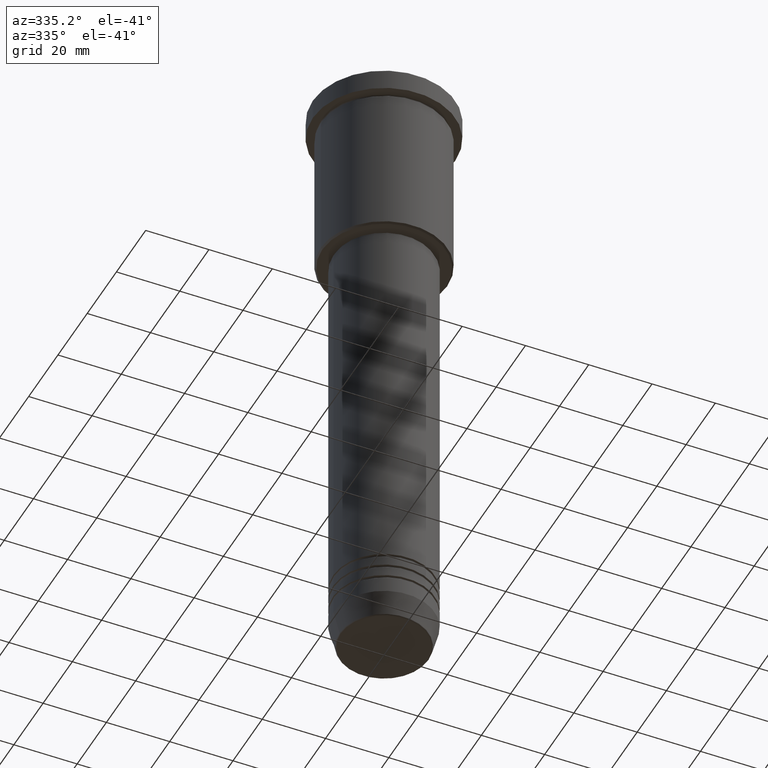
[diagram: clean part render]
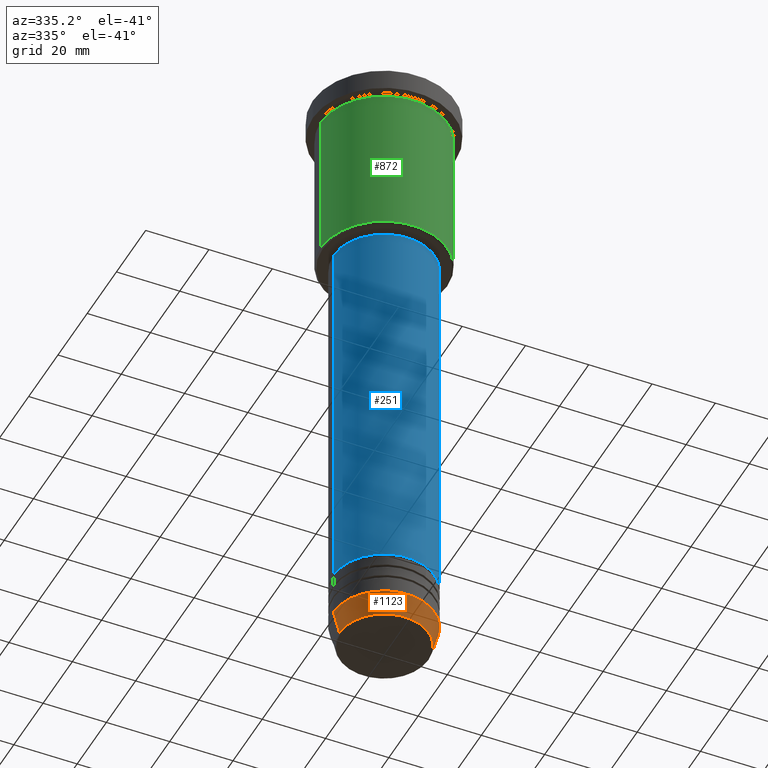
[diagram: same view with three faces highlighted in distinct colors, each labeled with its STEP entity id]
A machine part, auxiliary view with three faces highlighted in distinct colors.
Their STEP definitions:

[orange] entity #1123 — the highlighted conical surface has half-angle 15 deg.
#10 = EDGE_CURVE ( 'NONE', #926, #658, #240, .T. ) ;
#25 = CARTESIAN_POINT ( 'NONE',  ( 0.000000000000000000, 0.000000000000000000, -199.6294095225512706 ) ) ;
#152 = VERTEX_POINT ( 'NONE', #330 ) ;
#175 = DIRECTION ( 'NONE',  ( -0.2588190451025213501, 3.169619151431772337E-17, 0.9659258262890680902 ) ) ;
#190 = ORIENTED_EDGE ( 'NONE', *, *, #1042, .F. ) ;
#231 = CONICAL_SURFACE ( 'NONE', #573, 16.00000000000000000, 0.2617993877991500740 ) ;
#240 = LINE ( 'NONE', #252, #886 ) ;
#252 = CARTESIAN_POINT ( 'NONE',  ( 16.00000000000000000, 0.000000000000000000, -192.5000000000000284 ) ) ;
#285 = DIRECTION ( 'NONE',  ( 1.000000000000000000, 0.000000000000000000, 0.000000000000000000 ) ) ;
#310 = VERTEX_POINT ( 'NONE', #471 ) ;
#328 = CARTESIAN_POINT ( 'NONE',  ( 0.000000000000000000, 0.000000000000000000, -192.5000000000000284 ) ) ;
#330 = CARTESIAN_POINT ( 'NONE',  ( -14.08968047592163941, 1.842461544110202058E-15, -199.6294095225512706 ) ) ;
#370 = CARTESIAN_POINT ( 'NONE',  ( -16.00000000000000000, 1.959434878635765131E-15, -192.5000000000000284 ) ) ;
#384 = DIRECTION ( 'NONE',  ( -0.000000000000000000, -0.000000000000000000, 1.000000000000000000 ) ) ;
#410 = ORIENTED_EDGE ( 'NONE', *, *, #10, .T. ) ;
#425 = DIRECTION ( 'NONE',  ( 0.2588190451025213501, 0.000000000000000000, 0.9659258262890680902 ) ) ;
#441 = CARTESIAN_POINT ( 'NONE',  ( 14.08968047592163941, 0.000000000000000000, -199.6294095225512706 ) ) ;
#451 = CARTESIAN_POINT ( 'NONE',  ( 0.000000000000000000, 0.000000000000000000, -192.5000000000000284 ) ) ;
#455 = CIRCLE ( 'NONE', #784, 14.08968047592163941 ) ;
#471 = CARTESIAN_POINT ( 'NONE',  ( -16.00000000000000000, 1.959434878635765131E-15, -192.5000000000000284 ) ) ;
#503 = DIRECTION ( 'NONE',  ( -0.000000000000000000, -0.000000000000000000, 1.000000000000000000 ) ) ;
#520 = EDGE_LOOP ( 'NONE', ( #190, #1170, #410, #918 ) ) ;
#551 = AXIS2_PLACEMENT_3D ( 'NONE', #328, #503, #804 ) ;
#573 = AXIS2_PLACEMENT_3D ( 'NONE', #451, #1100, #832 ) ;
#656 = EDGE_CURVE ( 'NONE', #152, #926, #455, .T. ) ;
#658 = VERTEX_POINT ( 'NONE', #1106 ) ;
#690 = CIRCLE ( 'NONE', #551, 16.00000000000000000 ) ;
#784 = AXIS2_PLACEMENT_3D ( 'NONE', #25, #384, #285 ) ;
#804 = DIRECTION ( 'NONE',  ( 1.000000000000000000, 0.000000000000000000, 0.000000000000000000 ) ) ;
#832 = DIRECTION ( 'NONE',  ( 1.000000000000000000, 0.000000000000000000, 0.000000000000000000 ) ) ;
#886 = VECTOR ( 'NONE', #425, 1000.000000000000000 ) ;
#914 = FACE_OUTER_BOUND ( 'NONE', #520, .T. ) ;
#918 = ORIENTED_EDGE ( 'NONE', *, *, #930, .F. ) ;
#926 = VERTEX_POINT ( 'NONE', #441 ) ;
#930 = EDGE_CURVE ( 'NONE', #310, #658, #690, .T. ) ;
#1042 = EDGE_CURVE ( 'NONE', #152, #310, #1109, .T. ) ;
#1100 = DIRECTION ( 'NONE',  ( -0.000000000000000000, -0.000000000000000000, 1.000000000000000000 ) ) ;
#1106 = CARTESIAN_POINT ( 'NONE',  ( 16.00000000000000000, 0.000000000000000000, -192.5000000000000284 ) ) ;
#1109 = LINE ( 'NONE', #370, #1169 ) ;
#1123 = ADVANCED_FACE ( 'NONE', ( #914 ), #231, .T. ) ;
#1169 = VECTOR ( 'NONE', #175, 1000.000000000000000 ) ;
#1170 = ORIENTED_EDGE ( 'NONE', *, *, #656, .T. ) ;

[blue] entity #251 — the highlighted cylindrical surface (partial cylindrical patch) has radius 16 mm, axis along (-0, -0, 1).
#7 = AXIS2_PLACEMENT_3D ( 'NONE', #912, #1157, #623 ) ;
#53 = CARTESIAN_POINT ( 'NONE',  ( 16.00000000000000000, 0.000000000000000000, -178.5000000000000284 ) ) ;
#64 = DIRECTION ( 'NONE',  ( -0.000000000000000000, -0.000000000000000000, 1.000000000000000000 ) ) ;
#93 = ORIENTED_EDGE ( 'NONE', *, *, #910, .F. ) ;
#102 = DIRECTION ( 'NONE',  ( -0.000000000000000000, -0.000000000000000000, 1.000000000000000000 ) ) ;
#104 = CARTESIAN_POINT ( 'NONE',  ( 0.000000000000000000, 0.000000000000000000, 0.000000000000000000 ) ) ;
#105 = EDGE_CURVE ( 'NONE', #126, #364, #612, .T. ) ;
#126 = VERTEX_POINT ( 'NONE', #790 ) ;
#145 = LINE ( 'NONE', #989, #824 ) ;
#187 = DIRECTION ( 'NONE',  ( -0.000000000000000000, -0.000000000000000000, 1.000000000000000000 ) ) ;
#191 = CARTESIAN_POINT ( 'NONE',  ( 0.000000000000000000, 0.000000000000000000, -57.00000000000001421 ) ) ;
#220 = ORIENTED_EDGE ( 'NONE', *, *, #1172, .F. ) ;
#247 = CIRCLE ( 'NONE', #729, 16.00000000000000000 ) ;
#251 = ADVANCED_FACE ( 'NONE', ( #734 ), #740, .T. ) ;
#253 = ORIENTED_EDGE ( 'NONE', *, *, #105, .T. ) ;
#294 = EDGE_LOOP ( 'NONE', ( #93, #253, #600, #220 ) ) ;
#311 = EDGE_CURVE ( 'NONE', #364, #848, #917, .T. ) ;
#364 = VERTEX_POINT ( 'NONE', #53 ) ;
#464 = DIRECTION ( 'NONE',  ( 1.000000000000000000, 0.000000000000000000, 0.000000000000000000 ) ) ;
#600 = ORIENTED_EDGE ( 'NONE', *, *, #311, .T. ) ;
#612 = CIRCLE ( 'NONE', #7, 16.00000000000000000 ) ;
#623 = DIRECTION ( 'NONE',  ( 1.000000000000000000, 0.000000000000000000, 0.000000000000000000 ) ) ;
#642 = DIRECTION ( 'NONE',  ( -0.000000000000000000, -0.000000000000000000, 1.000000000000000000 ) ) ;
#655 = DIRECTION ( 'NONE',  ( 1.000000000000000000, 0.000000000000000000, 0.000000000000000000 ) ) ;
#678 = CARTESIAN_POINT ( 'NONE',  ( 16.00000000000000000, 0.000000000000000000, -57.00000000000001421 ) ) ;
#729 = AXIS2_PLACEMENT_3D ( 'NONE', #191, #102, #464 ) ;
#734 = FACE_OUTER_BOUND ( 'NONE', #294, .T. ) ;
#740 = CYLINDRICAL_SURFACE ( 'NONE', #1072, 16.00000000000000000 ) ;
#790 = CARTESIAN_POINT ( 'NONE',  ( -16.00000000000000000, 1.959434878635765131E-15, -178.5000000000000284 ) ) ;
#824 = VECTOR ( 'NONE', #64, 1000.000000000000000 ) ;
#848 = VERTEX_POINT ( 'NONE', #678 ) ;
#909 = CARTESIAN_POINT ( 'NONE',  ( -16.00000000000000000, 1.959434878635765131E-15, -57.00000000000001421 ) ) ;
#910 = EDGE_CURVE ( 'NONE', #126, #1103, #145, .T. ) ;
#912 = CARTESIAN_POINT ( 'NONE',  ( 0.000000000000000000, 0.000000000000000000, -178.5000000000000284 ) ) ;
#917 = LINE ( 'NONE', #1012, #1036 ) ;
#989 = CARTESIAN_POINT ( 'NONE',  ( -16.00000000000000000, 1.959434878635765131E-15, 0.000000000000000000 ) ) ;
#1012 = CARTESIAN_POINT ( 'NONE',  ( 16.00000000000000000, 0.000000000000000000, 0.000000000000000000 ) ) ;
#1036 = VECTOR ( 'NONE', #187, 1000.000000000000000 ) ;
#1072 = AXIS2_PLACEMENT_3D ( 'NONE', #104, #642, #655 ) ;
#1103 = VERTEX_POINT ( 'NONE', #909 ) ;
#1157 = DIRECTION ( 'NONE',  ( -0.000000000000000000, -0.000000000000000000, 1.000000000000000000 ) ) ;
#1172 = EDGE_CURVE ( 'NONE', #1103, #848, #247, .T. ) ;

[green] entity #872 — the highlighted cylindrical surface (partial cylindrical patch) has radius 20 mm, axis along (-0, -0, 1).
#42 = AXIS2_PLACEMENT_3D ( 'NONE', #164, #529, #978 ) ;
#97 = DIRECTION ( 'NONE',  ( -0.000000000000000000, -0.000000000000000000, 1.000000000000000000 ) ) ;
#138 = EDGE_CURVE ( 'NONE', #423, #147, #1056, .T. ) ;
#142 = CARTESIAN_POINT ( 'NONE',  ( -20.00000000000000000, 2.449293598294706513E-15, -7.999999999999994671 ) ) ;
#147 = VERTEX_POINT ( 'NONE', #444 ) ;
#164 = CARTESIAN_POINT ( 'NONE',  ( 0.000000000000000000, 0.000000000000000000, -55.49999999999997158 ) ) ;
#185 = EDGE_CURVE ( 'NONE', #147, #445, #293, .T. ) ;
#293 = LINE ( 'NONE', #549, #959 ) ;
#297 = DIRECTION ( 'NONE',  ( -0.000000000000000000, -0.000000000000000000, 1.000000000000000000 ) ) ;
#324 = CARTESIAN_POINT ( 'NONE',  ( 20.00000000000000000, 0.000000000000000000, -7.999999999999994671 ) ) ;
#327 = EDGE_LOOP ( 'NONE', ( #1086, #625, #694, #757 ) ) ;
#361 = VECTOR ( 'NONE', #733, 1000.000000000000000 ) ;
#366 = CARTESIAN_POINT ( 'NONE',  ( -20.00000000000000355, 2.449293598294706907E-15, 0.000000000000000000 ) ) ;
#379 = CIRCLE ( 'NONE', #687, 20.00000000000000000 ) ;
#381 = AXIS2_PLACEMENT_3D ( 'NONE', #1127, #297, #666 ) ;
#423 = VERTEX_POINT ( 'NONE', #500 ) ;
#432 = VERTEX_POINT ( 'NONE', #142 ) ;
#444 = CARTESIAN_POINT ( 'NONE',  ( 20.00000000000000355, 0.000000000000000000, -55.49999999999997158 ) ) ;
#445 = VERTEX_POINT ( 'NONE', #324 ) ;
#448 = LINE ( 'NONE', #366, #361 ) ;
#449 = DIRECTION ( 'NONE',  ( -0.000000000000000000, -0.000000000000000000, 1.000000000000000000 ) ) ;
#500 = CARTESIAN_POINT ( 'NONE',  ( -20.00000000000000355, 2.449293598294706907E-15, -55.49999999999997158 ) ) ;
#529 = DIRECTION ( 'NONE',  ( -0.000000000000000000, -0.000000000000000000, 1.000000000000000000 ) ) ;
#542 = CARTESIAN_POINT ( 'NONE',  ( 0.000000000000000000, 0.000000000000000000, -7.999999999999994671 ) ) ;
#549 = CARTESIAN_POINT ( 'NONE',  ( 20.00000000000000355, 0.000000000000000000, 0.000000000000000000 ) ) ;
#625 = ORIENTED_EDGE ( 'NONE', *, *, #138, .T. ) ;
#666 = DIRECTION ( 'NONE',  ( 1.000000000000000000, 0.000000000000000000, 0.000000000000000000 ) ) ;
#687 = AXIS2_PLACEMENT_3D ( 'NONE', #542, #97, #1016 ) ;
#693 = EDGE_CURVE ( 'NONE', #432, #445, #379, .T. ) ;
#694 = ORIENTED_EDGE ( 'NONE', *, *, #185, .T. ) ;
#714 = EDGE_CURVE ( 'NONE', #423, #432, #448, .T. ) ;
#733 = DIRECTION ( 'NONE',  ( -0.000000000000000000, -0.000000000000000000, 1.000000000000000000 ) ) ;
#757 = ORIENTED_EDGE ( 'NONE', *, *, #693, .F. ) ;
#758 = CYLINDRICAL_SURFACE ( 'NONE', #381, 20.00000000000000355 ) ;
#781 = FACE_OUTER_BOUND ( 'NONE', #327, .T. ) ;
#872 = ADVANCED_FACE ( 'NONE', ( #781 ), #758, .T. ) ;
#959 = VECTOR ( 'NONE', #449, 1000.000000000000000 ) ;
#978 = DIRECTION ( 'NONE',  ( -1.000000000000000000, 0.000000000000000000, 0.000000000000000000 ) ) ;
#1016 = DIRECTION ( 'NONE',  ( 1.000000000000000000, 0.000000000000000000, 0.000000000000000000 ) ) ;
#1056 = CIRCLE ( 'NONE', #42, 20.00000000000000355 ) ;
#1086 = ORIENTED_EDGE ( 'NONE', *, *, #714, .F. ) ;
#1127 = CARTESIAN_POINT ( 'NONE',  ( 0.000000000000000000, 0.000000000000000000, 0.000000000000000000 ) ) ;